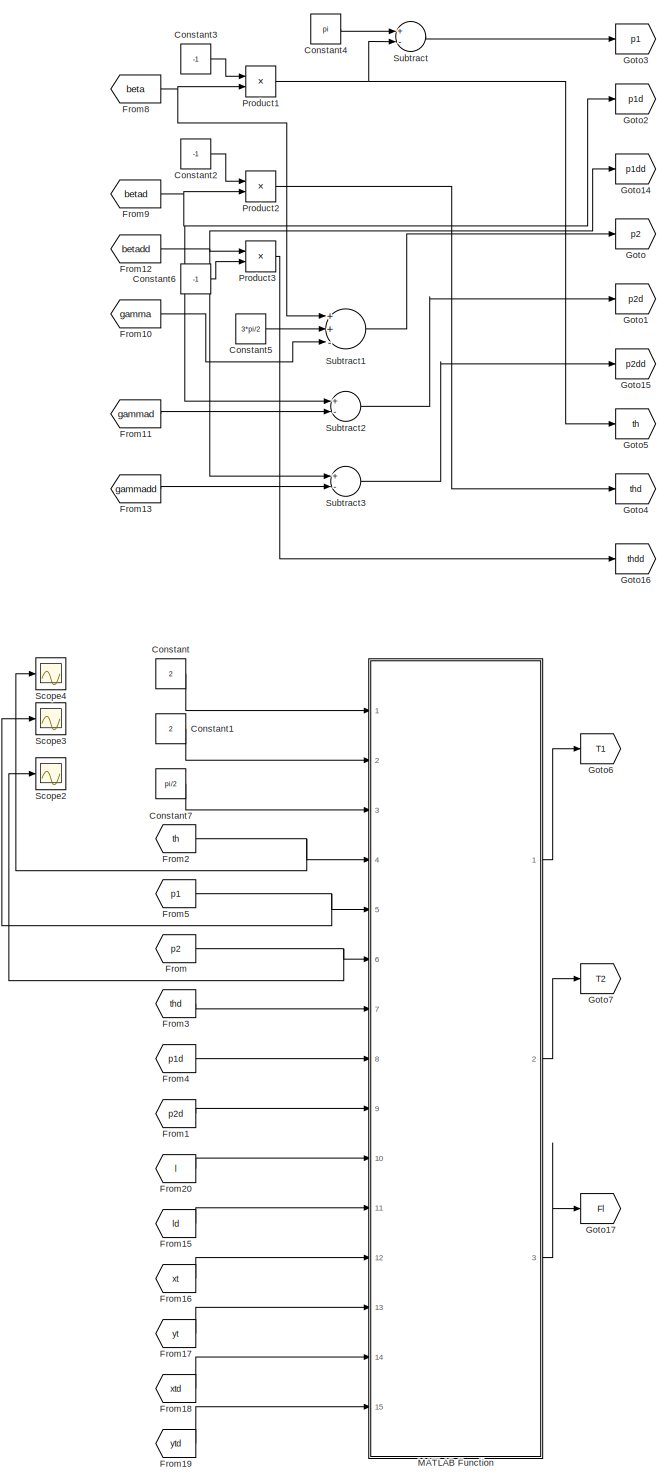
[diagram: root canvas - part 1/2, left side, full height]
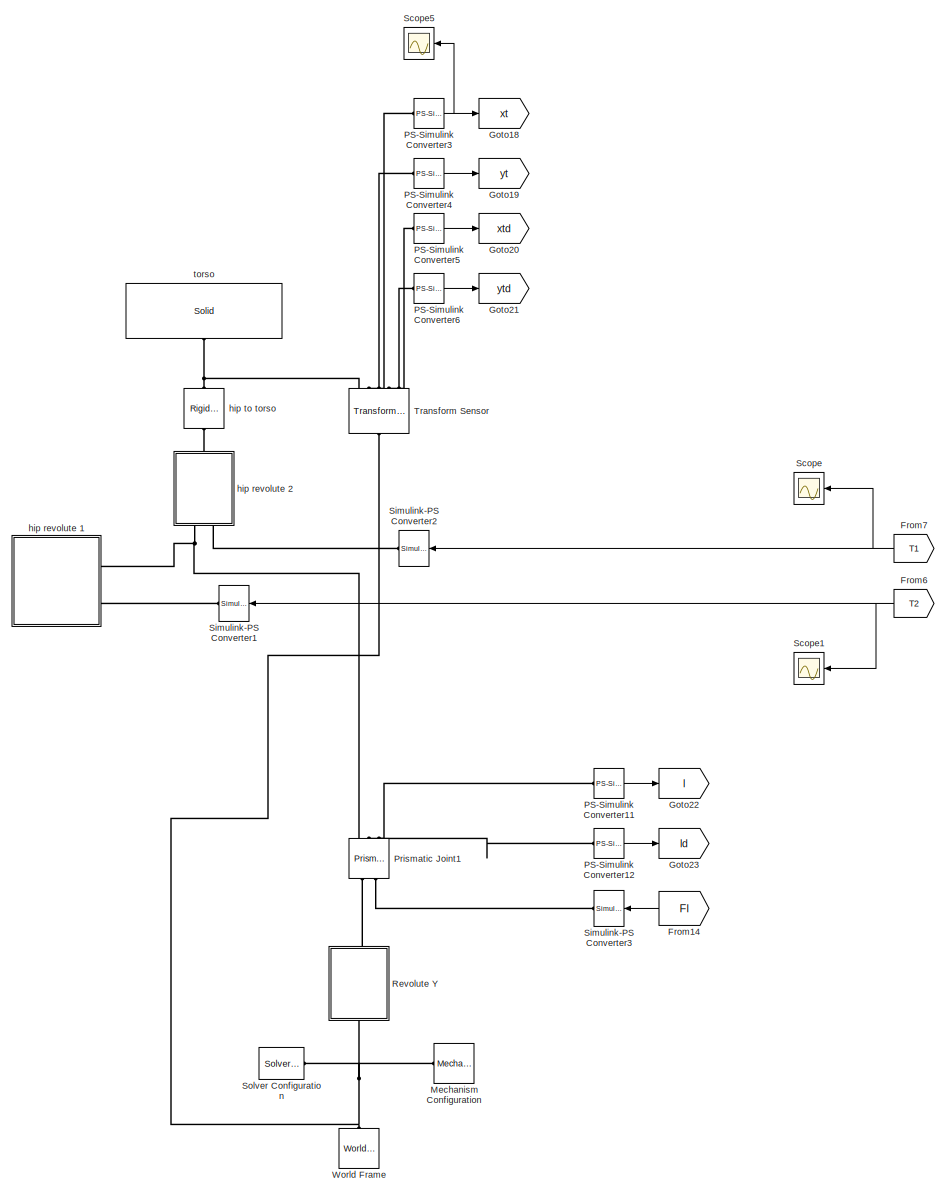
[diagram: root canvas - part 2/2, right side, full height]
MODEL slx_c00d2f48c28b
KIND model
CONFIG InitFcn = prisLegLength = 1 % [m]\nIm = 1.37\nIt = 1.37
BLOCK [Constant] Constant
  Value = 2
BLOCK [Constant] Constant1
  Value = 2
BLOCK [Constant] Constant2
  Value = -1
BLOCK [Constant] Constant3
  Value = -1
BLOCK [Constant] Constant4
  Value = pi
BLOCK [Constant] Constant5
  Value = 3*pi/2
BLOCK [Constant] Constant6
  Value = -1
BLOCK [Constant] Constant7
  Value = pi/2
BLOCK [From] From
  GotoTag = p2
BLOCK [From] From1
  GotoTag = p2d
BLOCK [From] From10
  GotoTag = gamma
BLOCK [From] From11
  GotoTag = gammad
BLOCK [From] From12
  GotoTag = betadd
BLOCK [From] From13
  GotoTag = gammadd
BLOCK [From] From14
  GotoTag = Fl
BLOCK [From] From15
  GotoTag = ld
BLOCK [From] From16
  GotoTag = xt
BLOCK [From] From17
  GotoTag = yt
BLOCK [From] From18
  GotoTag = xtd
BLOCK [From] From19
  GotoTag = ytd
BLOCK [From] From2
  GotoTag = th
BLOCK [From] From20
  GotoTag = l
BLOCK [From] From3
  GotoTag = thd
BLOCK [From] From4
  GotoTag = p1d
BLOCK [From] From5
  GotoTag = p1
BLOCK [From] From6
  GotoTag = T2
BLOCK [From] From7
  GotoTag = T1
BLOCK [From] From8
  GotoTag = beta
BLOCK [From] From9
  GotoTag = betad
BLOCK [Goto] Goto
  GotoTag = p2
BLOCK [Goto] Goto1
  GotoTag = p2d
BLOCK [Goto] Goto14
  GotoTag = p1dd
BLOCK [Goto] Goto15
  GotoTag = p2dd
BLOCK [Goto] Goto16
  GotoTag = thdd
BLOCK [Goto] Goto17
  GotoTag = Fl
BLOCK [Goto] Goto18
  GotoTag = xt
BLOCK [Goto] Goto19
  GotoTag = yt
BLOCK [Goto] Goto2
  GotoTag = p1d
BLOCK [Goto] Goto20
  GotoTag = xtd
BLOCK [Goto] Goto21
  GotoTag = ytd
BLOCK [Goto] Goto22
  GotoTag = l
BLOCK [Goto] Goto23
  GotoTag = ld
BLOCK [Goto] Goto3
  GotoTag = p1
BLOCK [Goto] Goto4
  GotoTag = thd
BLOCK [Goto] Goto5
  GotoTag = th
BLOCK [Goto] Goto6
  GotoTag = T1
BLOCK [Goto] Goto7
  GotoTag = T2
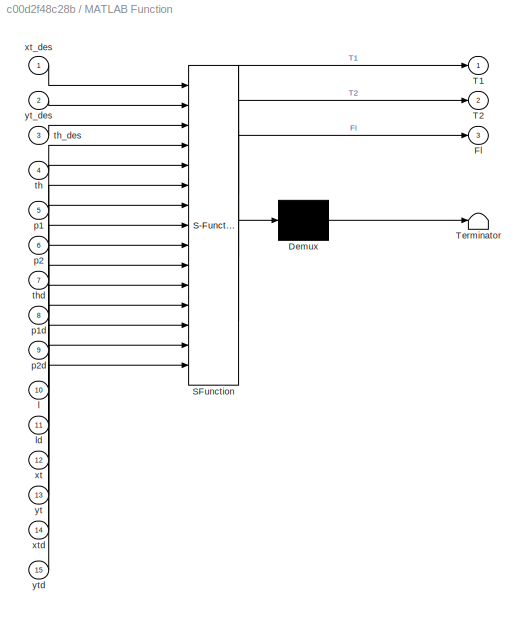
BLOCK [SubSystem] MATLAB Function
  ErrorFcn = Stateflow.Translate.translate
  FunctionWithSeparateData = off
  MaskHideContents = off
  MinAlgLoopOccurrences = off
  Opaque = off
  PermitHierarchicalResolution = ExplicitOnly
  Ports = [15, 3]
  PropExecContextOutsideSubsystem = off
  RTWSystemCode = Auto
  RequestExecContextInheritance = off
  SFBlockType = MATLAB Function
  TreatAsAtomicUnit = on
BLOCK [Demux] MATLAB Function/ Demux 
  Outputs = 1
  Ports = [1, 1]
BLOCK [S-Function] MATLAB Function/ SFunction 
  EnableBusSupport = on
  FunctionName = sf_sfun
  PortCounts = [15 4]
  Ports = [15, 4]
  Tag = Stateflow S-Function PMMUnderActuated_2ndgen 2
BLOCK [Terminator] MATLAB Function/ Terminator 
BLOCK [Outport] MATLAB Function/Fl
  IconDisplay = Port number
  Port = 3
BLOCK [Outport] MATLAB Function/T1
  IconDisplay = Port number
BLOCK [Outport] MATLAB Function/T2
  IconDisplay = Port number
  Port = 2
BLOCK [Inport] MATLAB Function/l
  IconDisplay = Port number
  Port = 10
BLOCK [Inport] MATLAB Function/ld
  IconDisplay = Port number
  Port = 11
BLOCK [Inport] MATLAB Function/p1
  IconDisplay = Port number
  Port = 5
BLOCK [Inport] MATLAB Function/p1d
  IconDisplay = Port number
  Port = 8
BLOCK [Inport] MATLAB Function/p2
  IconDisplay = Port number
  Port = 6
BLOCK [Inport] MATLAB Function/p2d
  IconDisplay = Port number
  Port = 9
BLOCK [Inport] MATLAB Function/th
  IconDisplay = Port number
  Port = 4
BLOCK [Inport] MATLAB Function/th_des
  IconDisplay = Port number
  Port = 3
BLOCK [Inport] MATLAB Function/thd
  IconDisplay = Port number
  Port = 7
BLOCK [Inport] MATLAB Function/xt
  IconDisplay = Port number
  Port = 12
BLOCK [Inport] MATLAB Function/xt_des
  IconDisplay = Port number
BLOCK [Inport] MATLAB Function/xtd
  IconDisplay = Port number
  Port = 14
BLOCK [Inport] MATLAB Function/yt
  IconDisplay = Port number
  Port = 13
BLOCK [Inport] MATLAB Function/yt_des
  IconDisplay = Port number
  Port = 2
BLOCK [Inport] MATLAB Function/ytd
  IconDisplay = Port number
  Port = 15
BLOCK [Reference] Mechanism Configuration  REF=sm_lib/Utilities/Mechanism 
Configuration
  AllowGravitySignal = off
  BlockFunction = simmechanics.library.utilities.mechanism_configuration
  ClassName = MechanismConfiguration
  GravityUnits = m/s^2
  GravityVector = [0 0 -9.81]
  LinearizationDelta = 0.001
  Ports = [0, 0, 0, 0, 0, 0, 1]
  SourceBlock = sm_lib/Utilities/Mechanism \nConfiguration
  SourceType = Mechanism Configuration
BLOCK [Reference] PS-Simulink Converter11  REF=nesl_utility/PS-Simulink
Converter
  AffineConversion = off
  Frequencies = []
  LeftPortType = input
  PhysicalDomain = network_engine_domain
  Ports = [0, 1, 0, 0, 0, 1]
  PseudoPeriodic = off
  RightPortType = output
  SourceBlock = nesl_utility/PS-Simulink\nConverter
  SourceType = PS-Simulink\nConverter
  SubClassName = ps_output
  Unit = 1
BLOCK [Reference] PS-Simulink Converter12  REF=nesl_utility/PS-Simulink
Converter
  AffineConversion = off
  Frequencies = []
  LeftPortType = input
  PhysicalDomain = network_engine_domain
  Ports = [0, 1, 0, 0, 0, 1]
  PseudoPeriodic = off
  RightPortType = output
  SourceBlock = nesl_utility/PS-Simulink\nConverter
  SourceType = PS-Simulink\nConverter
  SubClassName = ps_output
  Unit = 1
BLOCK [Reference] PS-Simulink Converter3  REF=nesl_utility/PS-Simulink
Converter
  AffineConversion = off
  Frequencies = []
  LeftPortType = input
  PhysicalDomain = network_engine_domain
  Ports = [0, 1, 0, 0, 0, 1]
  PseudoPeriodic = off
  RightPortType = output
  SourceBlock = nesl_utility/PS-Simulink\nConverter
  SourceType = PS-Simulink\nConverter
  SubClassName = ps_output
  Unit = 1
BLOCK [Reference] PS-Simulink Converter4  REF=nesl_utility/PS-Simulink
Converter
  AffineConversion = off
  Frequencies = []
  LeftPortType = input
  PhysicalDomain = network_engine_domain
  Ports = [0, 1, 0, 0, 0, 1]
  PseudoPeriodic = off
  RightPortType = output
  SourceBlock = nesl_utility/PS-Simulink\nConverter
  SourceType = PS-Simulink\nConverter
  SubClassName = ps_output
  Unit = 1
BLOCK [Reference] PS-Simulink Converter5  REF=nesl_utility/PS-Simulink
Converter
  AffineConversion = off
  Frequencies = []
  LeftPortType = input
  PhysicalDomain = network_engine_domain
  Ports = [0, 1, 0, 0, 0, 1]
  PseudoPeriodic = off
  RightPortType = output
  SourceBlock = nesl_utility/PS-Simulink\nConverter
  SourceType = PS-Simulink\nConverter
  SubClassName = ps_output
  Unit = 1
BLOCK [Reference] PS-Simulink Converter6  REF=nesl_utility/PS-Simulink
Converter
  AffineConversion = off
  Frequencies = []
  LeftPortType = input
  PhysicalDomain = network_engine_domain
  Ports = [0, 1, 0, 0, 0, 1]
  PseudoPeriodic = off
  RightPortType = output
  SourceBlock = nesl_utility/PS-Simulink\nConverter
  SourceType = PS-Simulink\nConverter
  SubClassName = ps_output
  Unit = 1
BLOCK [Reference] Prismatic Joint1  REF=sm_lib/Joints/Prismatic 
Joint
  ActuationMode = TorqueForceActuation
  BlockFunction = simmechanics.library.joints.prismatic_joint
  ClassName = PrismaticJoint
  ConstraintWrenchDir = FollowerOnBase
  ConstraintWrenchFrame = BaseFrame
  DampingCoefficient = 100
  DampingCoefficientUnits = N/(m/s)
  EquilibriumPosition = prisLegLength
  EquilibriumPositionUnits = m
  Ports = [0, 0, 0, 0, 0, 2, 3]
  PositionTargetPriority = High
  PositionTargetSpecify = on
  PositionTargetValue = prisLegLength
  PositionTargetValueUnits = m
  SenseAcceleration = off
  SenseConstraintForceX = off
  SenseConstraintForceY = off
  SenseConstraintForceZ = off
  SenseConstraintTorqueX = off
  SenseConstraintTorqueY = off
  SenseConstraintTorqueZ = off
  SensePosition = on
  SenseTorqueForce = off
  SenseVelocity = on
  SourceBlock = sm_lib/Joints/Prismatic \nJoint
  SourceType = Prismatic Joint
  SpringStiffness = 1000
  SpringStiffnessUnits = N/m
  VelocityTargetPriority = High
  VelocityTargetSpecify = off
  VelocityTargetValue = 0
  VelocityTargetValueUnits = m/s
BLOCK [Product] Product1
  InputSameDT = off
  OutDataTypeStr = Inherit: Inherit via internal rule
  Ports = [2, 1]
  RndMeth = Floor
  SaturateOnIntegerOverflow = off
BLOCK [Product] Product2
  InputSameDT = off
  OutDataTypeStr = Inherit: Inherit via internal rule
  Ports = [2, 1]
  RndMeth = Floor
  SaturateOnIntegerOverflow = off
BLOCK [Product] Product3
  InputSameDT = off
  OutDataTypeStr = Inherit: Inherit via internal rule
  Ports = [2, 1]
  RndMeth = Floor
  SaturateOnIntegerOverflow = off
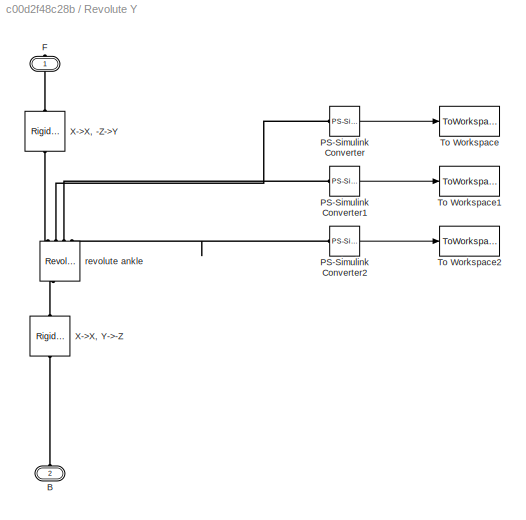
BLOCK [SubSystem] Revolute Y
  FunctionWithSeparateData = off
  MaskHideContents = off
  MinAlgLoopOccurrences = off
  Opaque = off
  Ports = [0, 0, 0, 0, 0, 1, 1]
  PropExecContextOutsideSubsystem = off
  RTWSystemCode = Auto
  RequestExecContextInheritance = off
BLOCK [PMIOPort] Revolute Y/B
  Port = 2
  Side = Left
BLOCK [PMIOPort] Revolute Y/F
  Port = 1
  Side = Right
BLOCK [Reference] Revolute Y/PS-Simulink Converter  REF=nesl_utility/PS-Simulink
Converter
  AffineConversion = off
  Frequencies = []
  LeftPortType = input
  PhysicalDomain = network_engine_domain
  Ports = [0, 1, 0, 0, 0, 1]
  PseudoPeriodic = off
  RightPortType = output
  SourceBlock = nesl_utility/PS-Simulink\nConverter
  SourceType = PS-Simulink\nConverter
  SubClassName = ps_output
  Unit = 1
BLOCK [Reference] Revolute Y/PS-Simulink Converter1  REF=nesl_utility/PS-Simulink
Converter
  AffineConversion = off
  Frequencies = []
  LeftPortType = input
  PhysicalDomain = network_engine_domain
  Ports = [0, 1, 0, 0, 0, 1]
  PseudoPeriodic = off
  RightPortType = output
  SourceBlock = nesl_utility/PS-Simulink\nConverter
  SourceType = PS-Simulink\nConverter
  SubClassName = ps_output
  Unit = 1
BLOCK [Reference] Revolute Y/PS-Simulink Converter2  REF=nesl_utility/PS-Simulink
Converter
  AffineConversion = off
  Frequencies = []
  LeftPortType = input
  PhysicalDomain = network_engine_domain
  Ports = [0, 1, 0, 0, 0, 1]
  PseudoPeriodic = off
  RightPortType = output
  SourceBlock = nesl_utility/PS-Simulink\nConverter
  SourceType = PS-Simulink\nConverter
  SubClassName = ps_output
  Unit = 1
BLOCK [ToWorkspace] Revolute Y/To Workspace
  MaxDataPoints = inf
  Ports = [1]
  SampleTime = -1
  SaveFormat = Timeseries
  VariableName = leg1_pos
BLOCK [ToWorkspace] Revolute Y/To Workspace1
  MaxDataPoints = inf
  Ports = [1]
  SampleTime = -1
  SaveFormat = Timeseries
  VariableName = leg1_vel
BLOCK [ToWorkspace] Revolute Y/To Workspace2
  MaxDataPoints = inf
  Ports = [1]
  SampleTime = -1
  SaveFormat = Timeseries
  VariableName = leg1_acc
BLOCK [Reference] Revolute Y/X->X, -Z->Y  REF=sm_lib/Frames and
 Transforms/Rigid 
Transform
  BaseAlignAxisA = +X
  BaseAlignAxisB = -Z
  BlockFunction = simmechanics.library.frames_transforms.rigid_transform
  ClassName = RigidTransform
  FollAlignAxisA = +X
  FollAlignAxisB = +Y
  Ports = [0, 0, 0, 0, 0, 1, 1]
  RotationAngle = 0
  RotationAngleUnits = deg
  RotationArbitraryAxis = [0 0 1]
  RotationMethod = AlignedAxes
  RotationStandardAxis = +Z
  SourceBlock = sm_lib/Frames and\n Transforms/Rigid \nTransform
  SourceType = Rigid Transform
  TranslationCartesianOffset = [0 0 0]
  TranslationLengthUnit = m
  TranslationMethod = None
  TranslationROffset = 0
  TranslationROffsetUnits = m
  TranslationStandardAxis = +Z
  TranslationStandardOffset = 0
  TranslationThetaOffset = 0
  TranslationThetaOffsetUnits = deg
  TranslationZOffset = 0
  TranslationZOffsetUnits = m
BLOCK [Reference] Revolute Y/X->X, Y->-Z  REF=sm_lib/Frames and
 Transforms/Rigid 
Transform
  BaseAlignAxisA = +X
  BaseAlignAxisB = +Y
  BlockFunction = simmechanics.library.frames_transforms.rigid_transform
  ClassName = RigidTransform
  FollAlignAxisA = +X
  FollAlignAxisB = -Z
  Ports = [0, 0, 0, 0, 0, 1, 1]
  RotationAngle = 0
  RotationAngleUnits = deg
  RotationArbitraryAxis = [0 0 1]
  RotationMethod = AlignedAxes
  RotationStandardAxis = +Z
  SourceBlock = sm_lib/Frames and\n Transforms/Rigid \nTransform
  SourceType = Rigid Transform
  TranslationCartesianOffset = [0 0 0]
  TranslationLengthUnit = m
  TranslationMethod = None
  TranslationROffset = 0
  TranslationROffsetUnits = m
  TranslationStandardAxis = +Z
  TranslationStandardOffset = 0
  TranslationThetaOffset = 0
  TranslationThetaOffsetUnits = deg
  TranslationZOffset = 0
  TranslationZOffsetUnits = m
BLOCK [Reference] Revolute Y/revolute ankle  REF=sm_lib/Joints/Revolute Joint
  ActuationMode = TorqueForceActuation
  BlockFunction = simmechanics.library.joints.revolute_joint
  ClassName = RevoluteJoint
  ConstraintWrenchDir = FollowerOnBase
  ConstraintWrenchFrame = BaseFrame
  DampingCoefficient = 0
  DampingCoefficientUnits = N*m/(deg/s)
  EquilibriumPosition = 0
  EquilibriumPositionUnits = deg
  Ports = [0, 0, 0, 0, 0, 2, 4]
  PositionTargetPriority = High
  PositionTargetSpecify = off
  PositionTargetValue = 45
  PositionTargetValueUnits = deg
  SenseAcceleration = on
  SenseConstraintForceX = off
  SenseConstraintForceY = off
  SenseConstraintForceZ = off
  SenseConstraintTorqueX = off
  SenseConstraintTorqueY = off
  SenseConstraintTorqueZ = off
  SensePosition = on
  SenseTorqueForce = off
  SenseVelocity = on
  SourceBlock = sm_lib/Joints/Revolute Joint
  SourceType = Revolute Joint
  SpringStiffness = 0
  SpringStiffnessUnits = N*m/deg
  VelocityTargetPriority = High
  VelocityTargetSpecify = off
  VelocityTargetValue = 10
  VelocityTargetValueUnits = deg/s
BLOCK [Scope] Scope
  DataFormat = StructureWithTime
  Floating = off
  NumInputPorts = 1
  Ports = [1]
  SampleTime = 0
  ShowLegends = off
BLOCK [Scope] Scope1
  DataFormat = StructureWithTime
  Floating = off
  NumInputPorts = 1
  Ports = [1]
  SampleTime = 0
  SaveName = ScopeData1
  ShowLegends = off
  YMax = 1e+13
  YMin = -1.5e+14
  ZoomMode = xonly
BLOCK [Scope] Scope2
  DataFormat = StructureWithTime
  Floating = off
  NumInputPorts = 1
  Ports = [1]
  SampleTime = 0
  SaveName = ScopeData2
  ShowLegends = off
BLOCK [Scope] Scope3
  DataFormat = StructureWithTime
  Floating = off
  NumInputPorts = 1
  Ports = [1]
  SampleTime = 0
  SaveName = ScopeData3
  ShowLegends = off
BLOCK [Scope] Scope4
  DataFormat = StructureWithTime
  Floating = off
  NumInputPorts = 1
  Ports = [1]
  SampleTime = 0
  SaveName = ScopeData4
  ShowLegends = off
BLOCK [Scope] Scope5
  DataFormat = StructureWithTime
  Floating = off
  NumInputPorts = 1
  Ports = [1]
  SampleTime = 0
  SaveName = ScopeData5
  ShowLegends = off
BLOCK [Reference] Simulink-PS Converter1  REF=nesl_utility/Simulink-PS
Converter
  AffineConversion = off
  Frequencies = []
  InputFilterTimeConstant = 0.001
  InputFiltering = off
  LeftPortType = input
  NoiseDistribution = none
  NoiseParameters = []
  PhysicalDomain = network_engine_domain
  Ports = [1, 0, 0, 0, 0, 0, 1]
  PseudoPeriodic = off
  RightPortType = output
  SimscapeFilterOrder = 1
  SourceBlock = nesl_utility/Simulink-PS\nConverter
  SourceType = Simulink-PS\nConverter
  SubClassName = ps_input
  UdotUserProvided = 1
  Unit = 1
BLOCK [Reference] Simulink-PS Converter2  REF=nesl_utility/Simulink-PS
Converter
  AffineConversion = off
  Frequencies = []
  InputFilterTimeConstant = 0.001
  InputFiltering = off
  LeftPortType = input
  NoiseDistribution = none
  NoiseParameters = []
  PhysicalDomain = network_engine_domain
  Ports = [1, 0, 0, 0, 0, 0, 1]
  PseudoPeriodic = off
  RightPortType = output
  SimscapeFilterOrder = 1
  SourceBlock = nesl_utility/Simulink-PS\nConverter
  SourceType = Simulink-PS\nConverter
  SubClassName = ps_input
  UdotUserProvided = 1
  Unit = 1
BLOCK [Reference] Simulink-PS Converter3  REF=nesl_utility/Simulink-PS
Converter
  AffineConversion = off
  Frequencies = []
  InputFilterTimeConstant = 0.001
  InputFiltering = off
  LeftPortType = input
  NoiseDistribution = none
  NoiseParameters = []
  PhysicalDomain = network_engine_domain
  Ports = [1, 0, 0, 0, 0, 0, 1]
  PseudoPeriodic = off
  RightPortType = output
  SimscapeFilterOrder = 1
  SourceBlock = nesl_utility/Simulink-PS\nConverter
  SourceType = Simulink-PS\nConverter
  SubClassName = ps_input
  UdotUserProvided = 1
  Unit = 1
BLOCK [Reference] Solver Configuration  REF=nesl_utility/Solver
Configuration
  Accelerate = off
  DelaysMemoryBudget = 1024
  DoDC = off
  DoFixedCost = off
  EnableSwitchedLinearOptims = on
  FrequencyDomain = off
  Harmonics = []
  LeftPortType = input
  LinearAlgebra = Sparse
  LocalSolverChoice = NE_BACKWARD_EULER_ADVANCER
  LocalSolverSampleTime = 0.001
  MaxModeIter = 2
  MaxNonlinIter = 3
  PhysicalDomain = network_engine_domain
  Ports = [0, 0, 0, 0, 0, 0, 1]
  Profile = off
  ResidualTolerance = 1e-09
  RightPortType = generic
  SimulateNoise = off
  SourceBlock = nesl_utility/Solver\nConfiguration
  SourceType = Solver\nConfiguration
  SubClassName = solver
  Tones = []
  UseCCode = off
  UseLocalSampling = off
  UseLocalSolver = off
  UseNewInitialization = off
BLOCK [Sum] Subtract
  InputSameDT = off
  Inputs = +-
  OutDataTypeStr = Inherit: Inherit via internal rule
  Ports = [2, 1]
  SaturateOnIntegerOverflow = off
BLOCK [Sum] Subtract1
  InputSameDT = off
  Inputs = ++-
  OutDataTypeStr = Inherit: Inherit via internal rule
  Ports = [3, 1]
  SaturateOnIntegerOverflow = off
BLOCK [Sum] Subtract2
  InputSameDT = off
  Inputs = +-
  OutDataTypeStr = Inherit: Inherit via internal rule
  Ports = [2, 1]
  SaturateOnIntegerOverflow = off
BLOCK [Sum] Subtract3
  InputSameDT = off
  Inputs = +-
  OutDataTypeStr = Inherit: Inherit via internal rule
  Ports = [2, 1]
  SaturateOnIntegerOverflow = off
BLOCK [Reference] Transform Sensor  REF=sm_lib/Frames and
 Transforms/Transform 
Sensor
  BlockFunction = simmechanics.library.frames_transforms.transform_sensor
  ClassName = TransformSensor
  MeasurementFrame = World
  Ports = [0, 0, 0, 0, 0, 1, 5]
  SenseAlpha1 = off
  SenseAlpha2 = off
  SenseAlpha3 = off
  SenseAlphaX = off
  SenseAlphaY = off
  SenseAlphaZ = off
  SenseAngle = off
  SenseAngle1 = off
  SenseAngle2 = off
  SenseAngle3 = off
  SenseAxis = off
  SenseAzim = off
  SenseAzimDDot = off
  SenseAzimDot = off
  SenseDist = off
  SenseDistDDot = off
  SenseDistDot = off
  SenseInc = off
  SenseIncDDot = off
  SenseIncDot = off
  SenseOmega1 = off
  SenseOmega2 = off
  SenseOmega3 = off
  SenseOmegaX = off
  SenseOmegaY = off
  SenseOmegaZ = off
  SenseQ = off
  SenseQDDot = off
  SenseQDot = off
  SenseR = off
  SenseRDDot = off
  SenseRDot = off
  SenseRad = off
  SenseRadDDot = off
  SenseRadDot = off
  SenseX = on
  SenseXDDot = off
  SenseXDot = on
  SenseY = off
  SenseYDDot = off
  SenseYDot = off
  SenseZ = on
  SenseZDDot = off
  SenseZDot = on
  SourceBlock = sm_lib/Frames and\n Transforms/Transform \nSensor
  SourceType = Transform Sensor
BLOCK [Reference] World Frame  REF=sm_lib/Frames and
 Transforms/World Frame
  BlockFunction = simmechanics.library.frames_transforms.world_frame
  ClassName = WorldFrame
  Ports = [0, 0, 0, 0, 0, 0, 1]
  SourceBlock = sm_lib/Frames and\n Transforms/World Frame
  SourceType = World Frame
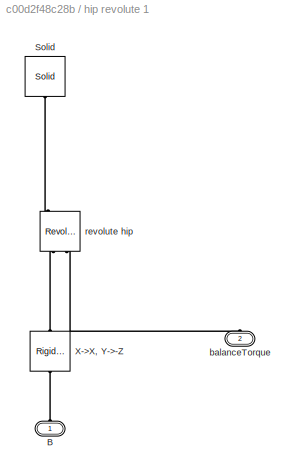
BLOCK [SubSystem] hip revolute 1
  FunctionWithSeparateData = off
  MaskHideContents = off
  MinAlgLoopOccurrences = off
  Opaque = off
  Ports = [0, 0, 0, 0, 0, 2]
  PropExecContextOutsideSubsystem = off
  RTWSystemCode = Auto
  RequestExecContextInheritance = off
BLOCK [PMIOPort] hip revolute 1/B
  Port = 1
  Side = Left
BLOCK [Reference] hip revolute 1/Solid  REF=sm_lib/Body Elements/Solid
  BlockFunction = simmechanics.library.body_elements.solid
  BrickDimensionUnits = m
  BrickDimensions = [.1 .1 .1]
  CenterOfMass = [0 0 0]
  CenterOfMassUnits = m
  ClassName = Solid
  CylinderLength = 1
  CylinderLengthUnits = m
  CylinderRadius = 1
  CylinderRadiusUnits = m
  Density = 1000
  DensityBased = on
  DensityUnits = kg/(m^3)
  EllipsoidRadii = [1 1 1]
  EllipsoidRadiiUnits = m
  ExtGeomFileUnits = m
  ExtrusionCrossSection = [1 1; -1 1; -1 -1; 1 -1]
  ExtrusionCrossSectionUnits = m
  ExtrusionLength = 1
  ExtrusionLengthUnits = m
  GeometryShape = Brick
  GraphicAmbientColor = [0.15 0.15 0.15 1.0]
  GraphicDiffuseColor = [0.5 0.5 0.5]
  GraphicEmissiveColor = [0.0 0.0 0.0 1.0]
  GraphicOpacity = 1.0
  GraphicShininess = 75
  GraphicSpecularColor = [0.5 0.5 0.5 1.0]
  GraphicType = FromGeometry
  GraphicVisPropType = SimpleVisualProperties
  InertiaType = Custom
  MarkerShape = Sphere
  MarkerSize = 10
  MarkerSizeUnits = m
  Mass = 0
  MassUnits = kg
  MomentsOfInertia = [0 0 Im]
  MomentsOfInertiaUnits = kg*m^2
  PolygonNumSides = 3
  PolygonOuterRadius = 1
  PolygonOuterRadiusUnits = m
  Ports = [0, 0, 0, 0, 0, 0, 1]
  ProductsOfInertia = [0 0 0]
  ProductsOfInertiaUnits = kg*m^2
  RectangleSize = [1 1]
  RectangleSizeUnits = m
  RevolutionAngle = 180
  RevolutionAngleUnits = deg
  RevolutionCrossSection = [1 1; 1 -1; 2 -1; 2 1]
  RevolutionCrossSectionUnits = m
  RevolutionExtent = Full
  SourceBlock = sm_lib/Body Elements/Solid
  SourceType = Solid
  SphereRadius = 1
  SphereRadiusUnits = m
BLOCK [Reference] hip revolute 1/X->X, Y->-Z  REF=sm_lib/Frames and
 Transforms/Rigid 
Transform
  BaseAlignAxisA = +X
  BaseAlignAxisB = +Y
  BlockFunction = simmechanics.library.frames_transforms.rigid_transform
  ClassName = RigidTransform
  FollAlignAxisA = +X
  FollAlignAxisB = -Z
  Ports = [0, 0, 0, 0, 0, 1, 1]
  RotationAngle = 0
  RotationAngleUnits = deg
  RotationArbitraryAxis = [0 0 1]
  RotationMethod = AlignedAxes
  RotationStandardAxis = +Z
  SourceBlock = sm_lib/Frames and\n Transforms/Rigid \nTransform
  SourceType = Rigid Transform
  TranslationCartesianOffset = [0 0 0]
  TranslationLengthUnit = m
  TranslationMethod = None
  TranslationROffset = 0
  TranslationROffsetUnits = m
  TranslationStandardAxis = +Z
  TranslationStandardOffset = 0
  TranslationThetaOffset = 0
  TranslationThetaOffsetUnits = deg
  TranslationZOffset = 0
  TranslationZOffsetUnits = m
BLOCK [PMIOPort] hip revolute 1/balanceTorque
  Port = 2
  Side = Left
BLOCK [Reference] hip revolute 1/revolute hip  REF=sm_lib/Joints/Revolute Joint
  ActuationMode = TorqueForceActuation
  BlockFunction = simmechanics.library.joints.revolute_joint
  ClassName = RevoluteJoint
  ConstraintWrenchDir = FollowerOnBase
  ConstraintWrenchFrame = BaseFrame
  DampingCoefficient = 0
  DampingCoefficientUnits = N*m/(deg/s)
  EquilibriumPosition = 0
  EquilibriumPositionUnits = deg
  Ports = [0, 0, 0, 0, 0, 2, 4]
  PositionTargetPriority = High
  PositionTargetSpecify = off
  PositionTargetValue = 30
  PositionTargetValueUnits = deg
  SenseAcceleration = on
  SenseConstraintForceX = off
  SenseConstraintForceY = off
  SenseConstraintForceZ = off
  SenseConstraintTorqueX = off
  SenseConstraintTorqueY = off
  SenseConstraintTorqueZ = off
  SensePosition = on
  SenseTorqueForce = off
  SenseVelocity = on
  SourceBlock = sm_lib/Joints/Revolute Joint
  SourceType = Revolute Joint
  SpringStiffness = 0
  SpringStiffnessUnits = N*m/deg
  VelocityTargetPriority = High
  VelocityTargetSpecify = off
  VelocityTargetValue = 10
  VelocityTargetValueUnits = deg/s
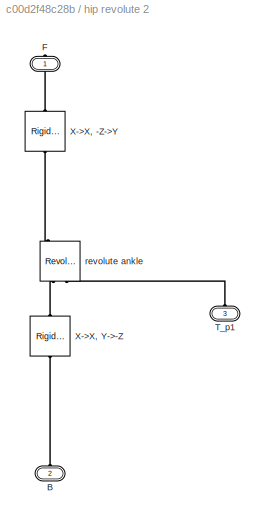
BLOCK [SubSystem] hip revolute 2
  FunctionWithSeparateData = off
  MaskHideContents = off
  MinAlgLoopOccurrences = off
  Opaque = off
  Ports = [0, 0, 0, 0, 0, 2, 1]
  PropExecContextOutsideSubsystem = off
  RTWSystemCode = Auto
  RequestExecContextInheritance = off
BLOCK [PMIOPort] hip revolute 2/B
  Port = 2
  Side = Left
BLOCK [PMIOPort] hip revolute 2/F
  Port = 1
  Side = Right
BLOCK [PMIOPort] hip revolute 2/T_p1
  Port = 3
  Side = Left
BLOCK [Reference] hip revolute 2/X->X, -Z->Y  REF=sm_lib/Frames and
 Transforms/Rigid 
Transform
  BaseAlignAxisA = +X
  BaseAlignAxisB = -Z
  BlockFunction = simmechanics.library.frames_transforms.rigid_transform
  ClassName = RigidTransform
  FollAlignAxisA = +X
  FollAlignAxisB = +Y
  Ports = [0, 0, 0, 0, 0, 1, 1]
  RotationAngle = 0
  RotationAngleUnits = deg
  RotationArbitraryAxis = [0 0 1]
  RotationMethod = AlignedAxes
  RotationStandardAxis = +Z
  SourceBlock = sm_lib/Frames and\n Transforms/Rigid \nTransform
  SourceType = Rigid Transform
  TranslationCartesianOffset = [0 0 0]
  TranslationLengthUnit = m
  TranslationMethod = None
  TranslationROffset = 0
  TranslationROffsetUnits = m
  TranslationStandardAxis = +Z
  TranslationStandardOffset = 0
  TranslationThetaOffset = 0
  TranslationThetaOffsetUnits = deg
  TranslationZOffset = 0
  TranslationZOffsetUnits = m
BLOCK [Reference] hip revolute 2/X->X, Y->-Z  REF=sm_lib/Frames and
 Transforms/Rigid 
Transform
  BaseAlignAxisA = +X
  BaseAlignAxisB = +Y
  BlockFunction = simmechanics.library.frames_transforms.rigid_transform
  ClassName = RigidTransform
  FollAlignAxisA = +X
  FollAlignAxisB = -Z
  Ports = [0, 0, 0, 0, 0, 1, 1]
  RotationAngle = 0
  RotationAngleUnits = deg
  RotationArbitraryAxis = [0 0 1]
  RotationMethod = AlignedAxes
  RotationStandardAxis = +Z
  SourceBlock = sm_lib/Frames and\n Transforms/Rigid \nTransform
  SourceType = Rigid Transform
  TranslationCartesianOffset = [0 0 0]
  TranslationLengthUnit = m
  TranslationMethod = None
  TranslationROffset = 0
  TranslationROffsetUnits = m
  TranslationStandardAxis = +Z
  TranslationStandardOffset = 0
  TranslationThetaOffset = 0
  TranslationThetaOffsetUnits = deg
  TranslationZOffset = 0
  TranslationZOffsetUnits = m
BLOCK [Reference] hip revolute 2/revolute ankle  REF=sm_lib/Joints/Revolute Joint
  ActuationMode = TorqueForceActuation
  BlockFunction = simmechanics.library.joints.revolute_joint
  ClassName = RevoluteJoint
  ConstraintWrenchDir = FollowerOnBase
  ConstraintWrenchFrame = BaseFrame
  DampingCoefficient = 0
  DampingCoefficientUnits = N*m/(deg/s)
  EquilibriumPosition = 0
  EquilibriumPositionUnits = deg
  Ports = [0, 0, 0, 0, 0, 2, 4]
  PositionTargetPriority = High
  PositionTargetSpecify = off
  PositionTargetValue = -45
  PositionTargetValueUnits = deg
  SenseAcceleration = on
  SenseConstraintForceX = off
  SenseConstraintForceY = off
  SenseConstraintForceZ = off
  SenseConstraintTorqueX = off
  SenseConstraintTorqueY = off
  SenseConstraintTorqueZ = off
  SensePosition = on
  SenseTorqueForce = off
  SenseVelocity = on
  SourceBlock = sm_lib/Joints/Revolute Joint
  SourceType = Revolute Joint
  SpringStiffness = 0
  SpringStiffnessUnits = N*m/deg
  VelocityTargetPriority = High
  VelocityTargetSpecify = off
  VelocityTargetValue = 100
  VelocityTargetValueUnits = deg/s
BLOCK [Reference] hip to torso  REF=sm_lib/Frames and
 Transforms/Rigid 
Transform
  BaseAlignAxisA = +Y
  BaseAlignAxisB = +Z
  BlockFunction = simmechanics.library.frames_transforms.rigid_transform
  ClassName = RigidTransform
  FollAlignAxisA = +X
  FollAlignAxisB = +Y
  Ports = [0, 0, 0, 0, 0, 1, 1]
  RotationAngle = 0
  RotationAngleUnits = deg
  RotationArbitraryAxis = [0 0 1]
  RotationMethod = None
  RotationStandardAxis = +Z
  SourceBlock = sm_lib/Frames and\n Transforms/Rigid \nTransform
  SourceType = Rigid Transform
  TranslationCartesianOffset = [0 0 0]
  TranslationLengthUnit = m
  TranslationMethod = StandardAxis
  TranslationROffset = 0
  TranslationROffsetUnits = m
  TranslationStandardAxis = +Z
  TranslationStandardOffset = prisLegLength/2
  TranslationThetaOffset = 0
  TranslationThetaOffsetUnits = deg
  TranslationZOffset = 0
  TranslationZOffsetUnits = m
BLOCK [Reference] torso  REF=sm_lib/Body Elements/Solid
  BlockFunction = simmechanics.library.body_elements.solid
  BrickDimensionUnits = m
  BrickDimensions = [.1 .1 prisLegLength]
  CenterOfMass = [0 0 0]
  CenterOfMassUnits = m
  ClassName = Solid
  CylinderLength = 1
  CylinderLengthUnits = m
  CylinderRadius = 1
  CylinderRadiusUnits = m
  Density = 1000
  DensityBased = on
  DensityUnits = kg/(m^3)
  EllipsoidRadii = [1 1 1]
  EllipsoidRadiiUnits = m
  ExtGeomFileUnits = m
  ExtrusionCrossSection = [1 1; -1 1; -1 -1; 1 -1]
  ExtrusionCrossSectionUnits = m
  ExtrusionLength = 1
  ExtrusionLengthUnits = m
  GeometryShape = Brick
  GraphicAmbientColor = [0.15 0.15 0.15 1.0]
  GraphicDiffuseColor = [0.5 1 0.5]
  GraphicEmissiveColor = [0.0 0.0 0.0 1.0]
  GraphicOpacity = 1.0
  GraphicShininess = 75
  GraphicSpecularColor = [0.5 0.5 0.5 1.0]
  GraphicType = FromGeometry
  GraphicVisPropType = SimpleVisualProperties
  InertiaType = CalculateFromGeometry
  MarkerShape = Sphere
  MarkerSize = 10
  MarkerSizeUnits = m
  Mass = 1
  MassUnits = kg
  MomentsOfInertia = [1 1 1]
  MomentsOfInertiaUnits = kg*m^2
  PolygonNumSides = 3
  PolygonOuterRadius = 1
  PolygonOuterRadiusUnits = m
  Ports = [0, 0, 0, 0, 0, 0, 1]
  ProductsOfInertia = [0 0 0]
  ProductsOfInertiaUnits = kg*m^2
  RectangleSize = [1 1]
  RectangleSizeUnits = m
  RevolutionAngle = 180
  RevolutionAngleUnits = deg
  RevolutionCrossSection = [1 1; 1 -1; 2 -1; 2 1]
  RevolutionCrossSectionUnits = m
  RevolutionExtent = Full
  SourceBlock = sm_lib/Body Elements/Solid
  SourceType = Solid
  SphereRadius = 1
  SphereRadiusUnits = m
LINE Constant1:1 -> MATLAB Function:2
LINE Constant2:1 -> Product2:1
LINE Constant3:1 -> Product1:1
LINE Constant4:1 -> Subtract:1
LINE Constant5:1 -> Subtract1:2
LINE Constant6:1 -> Product3:2
LINE Constant7:1 -> MATLAB Function:3
LINE Constant:1 -> MATLAB Function:1
LINE From10:1 -> Subtract1:3
LINE From11:1 -> Subtract2:2
NET From12:1 -> Goto14:1, Product3:1, Subtract3:1
LINE From13:1 -> Subtract3:2
LINE From14:1 -> Simulink-PS Converter3:1
LINE From15:1 -> MATLAB Function:11
LINE From16:1 -> MATLAB Function:12
LINE From17:1 -> MATLAB Function:13
LINE From18:1 -> MATLAB Function:14
LINE From19:1 -> MATLAB Function:15
LINE From1:1 -> MATLAB Function:9
LINE From20:1 -> MATLAB Function:10
NET From2:1 -> MATLAB Function:4, Scope4:1
LINE From3:1 -> MATLAB Function:7
LINE From4:1 -> MATLAB Function:8
NET From5:1 -> MATLAB Function:5, Scope3:1
NET From6:1 -> Scope1:1, Simulink-PS Converter1:1
NET From7:1 -> Scope:1, Simulink-PS Converter2:1
NET From8:1 -> Product1:2, Subtract1:1
NET From9:1 -> Goto2:1, Product2:2, Subtract2:1
NET From:1 -> MATLAB Function:6, Scope2:1
LINE MATLAB Function:1 -> Goto6:1
LINE MATLAB Function:2 -> Goto7:1
LINE MATLAB Function:3 -> Goto17:1
LINE PS-Simulink Converter11:1 -> Goto22:1
LINE PS-Simulink Converter12:1 -> Goto23:1
NET PS-Simulink Converter3:1 -> Goto18:1, Scope5:1
LINE PS-Simulink Converter4:1 -> Goto19:1
LINE PS-Simulink Converter5:1 -> Goto20:1
LINE PS-Simulink Converter6:1 -> Goto21:1
NET Product1:1 -> Goto5:1, Subtract:2
LINE Product2:1 -> Goto4:1
LINE Product3:1 -> Goto16:1
LINE Revolute Y/PS-Simulink Converter1:1 -> Revolute Y/To Workspace1:1
LINE Revolute Y/PS-Simulink Converter2:1 -> Revolute Y/To Workspace2:1
LINE Revolute Y/PS-Simulink Converter:1 -> Revolute Y/To Workspace:1
LINE Subtract1:1 -> Goto:1
LINE Subtract2:1 -> Goto1:1
LINE Subtract3:1 -> Goto15:1
LINE Subtract:1 -> Goto3:1
PNET net1: Mechanism Configuration:RConn1 -- Revolute Y:LConn1 -- Solver Configuration:RConn1 -- Transform Sensor:LConn1 -- World Frame:RConn1
PLINE PS-Simulink Converter11:LConn1 -- Prismatic Joint1:RConn2
PLINE PS-Simulink Converter12:LConn1 -- Prismatic Joint1:RConn3
PLINE PS-Simulink Converter3:LConn1 -- Transform Sensor:RConn2
PLINE PS-Simulink Converter4:LConn1 -- Transform Sensor:RConn3
PLINE PS-Simulink Converter5:LConn1 -- Transform Sensor:RConn4
PLINE PS-Simulink Converter6:LConn1 -- Transform Sensor:RConn5
PLINE Prismatic Joint1:LConn1 -- Revolute Y:RConn1
PLINE Prismatic Joint1:LConn2 -- Simulink-PS Converter3:RConn1
PNET net2: Prismatic Joint1:RConn1 -- hip revolute 1:LConn1 -- hip revolute 2:LConn1
PLINE Revolute Y/B:RConn1 -- Revolute Y/X->X, Y->-Z:LConn1
PLINE Revolute Y/F:RConn1 -- Revolute Y/X->X, -Z->Y:RConn1
PLINE Revolute Y/PS-Simulink Converter1:LConn1 -- Revolute Y/revolute ankle:RConn3
PLINE Revolute Y/PS-Simulink Converter2:LConn1 -- Revolute Y/revolute ankle:RConn4
PLINE Revolute Y/PS-Simulink Converter:LConn1 -- Revolute Y/revolute ankle:RConn2
PLINE Revolute Y/X->X, -Z->Y:LConn1 -- Revolute Y/revolute ankle:RConn1
PLINE Revolute Y/X->X, Y->-Z:RConn1 -- Revolute Y/revolute ankle:LConn1
PLINE Simulink-PS Converter1:RConn1 -- hip revolute 1:LConn2
PLINE Simulink-PS Converter2:RConn1 -- hip revolute 2:LConn2
PNET net3: Transform Sensor:RConn1 -- hip to torso:RConn1 -- torso:RConn1
PLINE hip revolute 1/B:RConn1 -- hip revolute 1/X->X, Y->-Z:LConn1
PLINE hip revolute 1/Solid:RConn1 -- hip revolute 1/revolute hip:RConn1
PLINE hip revolute 1/X->X, Y->-Z:RConn1 -- hip revolute 1/revolute hip:LConn1
PLINE hip revolute 1/balanceTorque:RConn1 -- hip revolute 1/revolute hip:LConn2
PLINE hip revolute 2/B:RConn1 -- hip revolute 2/X->X, Y->-Z:LConn1
PLINE hip revolute 2/F:RConn1 -- hip revolute 2/X->X, -Z->Y:RConn1
PLINE hip revolute 2/T_p1:RConn1 -- hip revolute 2/revolute ankle:LConn2
PLINE hip revolute 2/X->X, -Z->Y:LConn1 -- hip revolute 2/revolute ankle:RConn1
PLINE hip revolute 2/X->X, Y->-Z:RConn1 -- hip revolute 2/revolute ankle:LConn1
PLINE hip revolute 2:RConn1 -- hip to torso:LConn1
note: NET lines group one-source signal fan-out (src -> all destinations, sorted); 1:1 wires keep LINE; PNET lines group multi-terminal physical nets as a canonical sorted terminal list (undirected conserving connections); 2-terminal nets keep the pairwise PLINE form
